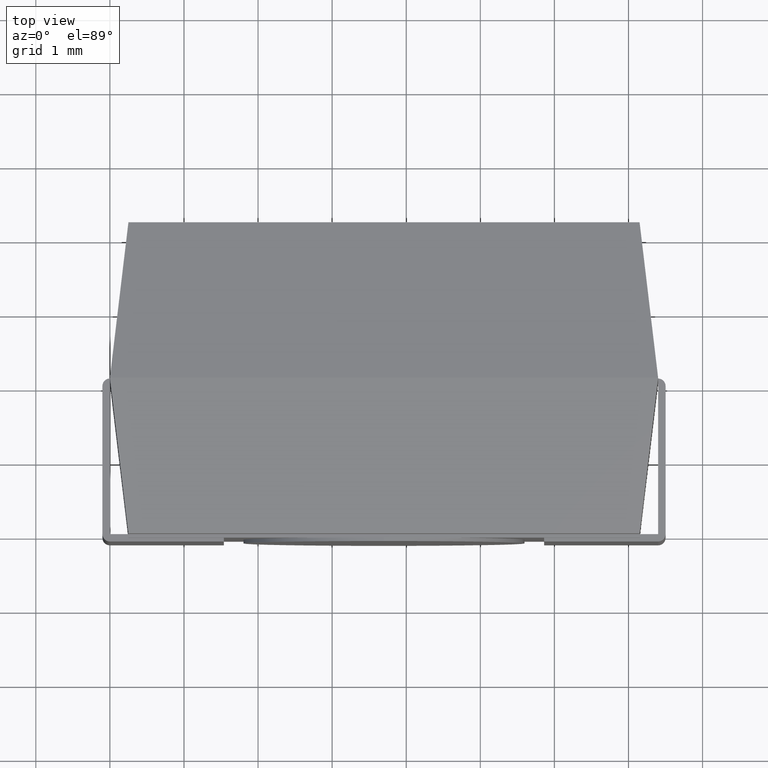
[diagram: clean part render]
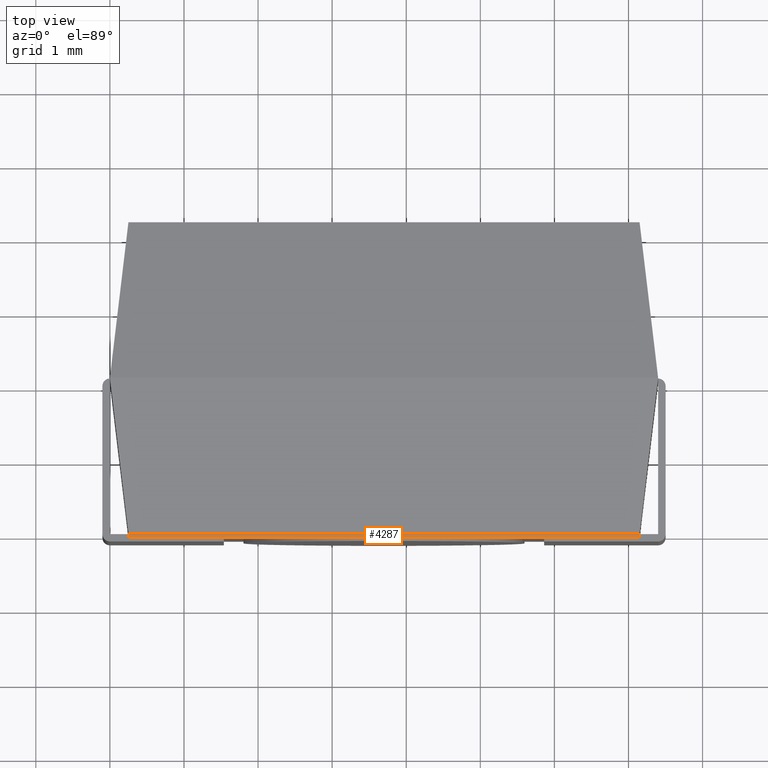
[diagram: same view with one face highlighted and labeled with its STEP entity id]
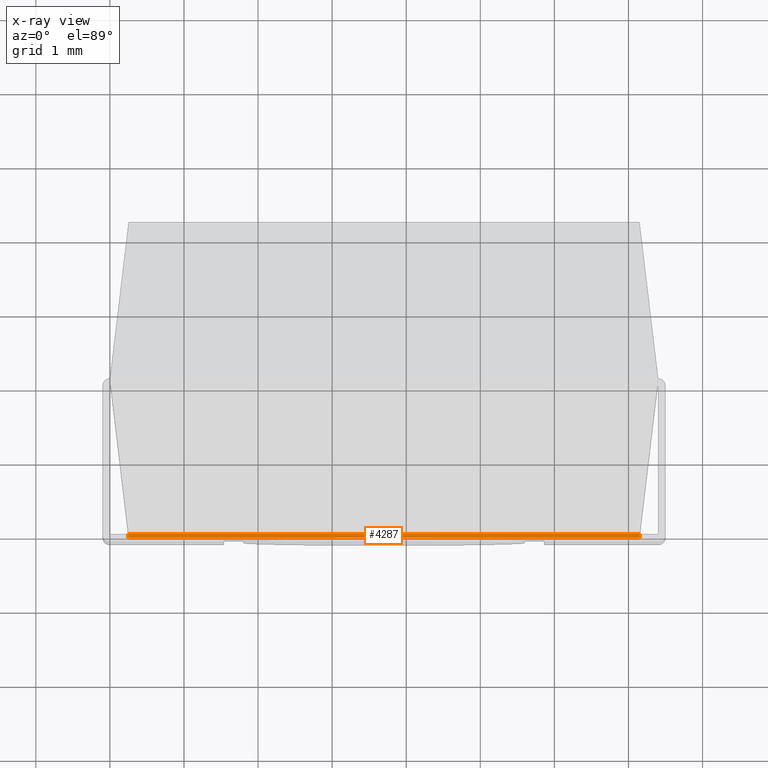
[diagram: x-ray of the same camera — body ghosted, the highlighted face saturated]
A machine part, top view. The second image highlights one B-rep face of the part: STEP entity #4287.
The next image is the same camera in x-ray: the body ghosted, the highlighted face saturated — about 0% of this face is hidden behind the body in this view.
In plain terms, the highlighted planar face has unit normal (0, 0, -1).
Its self-contained STEP definition (entity closure, byte-faithful):
#59 = FACE_OUTER_BOUND ( 'NONE', #3864, .T. ) ;
#74 = CARTESIAN_POINT ( 'NONE',  ( 4.718242598993645842, -0.05000000000000000278, -0.7000000000000002887 ) ) ;
#193 = CARTESIAN_POINT ( 'NONE',  ( 2.681757401006354069, -0.05000000000000000278, -0.7000000000000005107 ) ) ;
#233 = EDGE_CURVE ( 'NONE', #2869, #3739, #4127, .T. ) ;
#373 = ORIENTED_EDGE ( 'NONE', *, *, #2310, .F. ) ;
#428 = VECTOR ( 'NONE', #1753, 1000.000000000000000 ) ;
#559 = VECTOR ( 'NONE', #2807, 1000.000000000000000 ) ;
#594 = DIRECTION ( 'NONE',  ( -1.000000000000000000, 0.000000000000000000, -9.427844978134822666E-17 ) ) ;
#669 = ORIENTED_EDGE ( 'NONE', *, *, #3591, .F. ) ;
#743 = DIRECTION ( 'NONE',  ( -0.000000000000000000, 1.000000000000000000, -0.000000000000000000 ) ) ;
#929 = ORIENTED_EDGE ( 'NONE', *, *, #233, .F. ) ;
#992 = EDGE_CURVE ( 'NONE', #1216, #1985, #2786, .T. ) ;
#1216 = VERTEX_POINT ( 'NONE', #3067 ) ;
#1412 = LINE ( 'NONE', #4109, #3767 ) ;
#1419 = DIRECTION ( 'NONE',  ( -1.000000000000000000, 0.000000000000000000, -9.427844978134822666E-17 ) ) ;
#1473 = CARTESIAN_POINT ( 'NONE',  ( 7.149999999999999467, 0.000000000000000000, -0.7000000000000000666 ) ) ;
#1753 = DIRECTION ( 'NONE',  ( -0.000000000000000000, 1.000000000000000000, -0.000000000000000000 ) ) ;
#1754 = DIRECTION ( 'NONE',  ( 9.427844978134822666E-17, 0.000000000000000000, -1.000000000000000000 ) ) ;
#1985 = VERTEX_POINT ( 'NONE', #3923 ) ;
#2222 = CARTESIAN_POINT ( 'NONE',  ( 7.149999999999999467, -0.05000000000000000278, -0.7000000000000000666 ) ) ;
#2310 = EDGE_CURVE ( 'NONE', #3658, #1985, #1412, .T. ) ;
#2355 = CARTESIAN_POINT ( 'NONE',  ( 7.149999999999999467, -0.05000000000000000278, -0.7000000000000000666 ) ) ;
#2431 = CARTESIAN_POINT ( 'NONE',  ( 7.149999999999999467, -0.05000000000000000278, -0.7000000000000000666 ) ) ;
#2461 = PLANE ( 'NONE',  #4292 ) ;
#2475 = VECTOR ( 'NONE', #594, 1000.000000000000000 ) ;
#2729 = CARTESIAN_POINT ( 'NONE',  ( 7.149999999999999467, -0.05000000000000000278, -0.7000000000000000666 ) ) ;
#2757 = VERTEX_POINT ( 'NONE', #193 ) ;
#2786 = LINE ( 'NONE', #1473, #559 ) ;
#2807 = DIRECTION ( 'NONE',  ( -1.000000000000000000, 0.000000000000000000, -9.427844978134822666E-17 ) ) ;
#2830 = VECTOR ( 'NONE', #3849, 1000.000000000000000 ) ;
#2869 = VERTEX_POINT ( 'NONE', #2729 ) ;
#2954 = VECTOR ( 'NONE', #3388, 1000.000000000000000 ) ;
#2997 = CARTESIAN_POINT ( 'NONE',  ( 0.2500000000000001110, -0.05000000000000000278, -0.7000000000000007327 ) ) ;
#3067 = CARTESIAN_POINT ( 'NONE',  ( 7.149999999999999467, 0.000000000000000000, -0.7000000000000000666 ) ) ;
#3209 = CARTESIAN_POINT ( 'NONE',  ( 7.149999999999999467, -0.05000000000000000278, -0.7000000000000000666 ) ) ;
#3295 = LINE ( 'NONE', #2355, #2475 ) ;
#3342 = EDGE_CURVE ( 'NONE', #2869, #1216, #3908, .T. ) ;
#3388 = DIRECTION ( 'NONE',  ( -1.000000000000000000, 0.000000000000000000, -9.427844978134822666E-17 ) ) ;
#3416 = ORIENTED_EDGE ( 'NONE', *, *, #3342, .T. ) ;
#3418 = ORIENTED_EDGE ( 'NONE', *, *, #992, .T. ) ;
#3591 = EDGE_CURVE ( 'NONE', #3739, #2757, #4240, .T. ) ;
#3628 = EDGE_CURVE ( 'NONE', #2757, #3658, #3295, .T. ) ;
#3658 = VERTEX_POINT ( 'NONE', #2997 ) ;
#3739 = VERTEX_POINT ( 'NONE', #74 ) ;
#3767 = VECTOR ( 'NONE', #743, 1000.000000000000000 ) ;
#3793 = ORIENTED_EDGE ( 'NONE', *, *, #3628, .F. ) ;
#3822 = CARTESIAN_POINT ( 'NONE',  ( 7.149999999999999467, -0.05000000000000000278, -0.7000000000000000666 ) ) ;
#3849 = DIRECTION ( 'NONE',  ( -1.000000000000000000, 0.000000000000000000, -9.427844978134822666E-17 ) ) ;
#3864 = EDGE_LOOP ( 'NONE', ( #3418, #373, #3793, #669, #929, #3416 ) ) ;
#3908 = LINE ( 'NONE', #2222, #428 ) ;
#3923 = CARTESIAN_POINT ( 'NONE',  ( 0.2500000000000001110, 1.694065894508600678E-18, -0.7000000000000000666 ) ) ;
#4109 = CARTESIAN_POINT ( 'NONE',  ( 0.2500000000000001110, -0.05000000000000000278, -0.7000000000000007327 ) ) ;
#4127 = LINE ( 'NONE', #2431, #2954 ) ;
#4240 = LINE ( 'NONE', #3209, #2830 ) ;
#4287 = ADVANCED_FACE ( 'NONE', ( #59 ), #2461, .F. ) ;
#4292 = AXIS2_PLACEMENT_3D ( 'NONE', #3822, #1754, #1419 ) ;